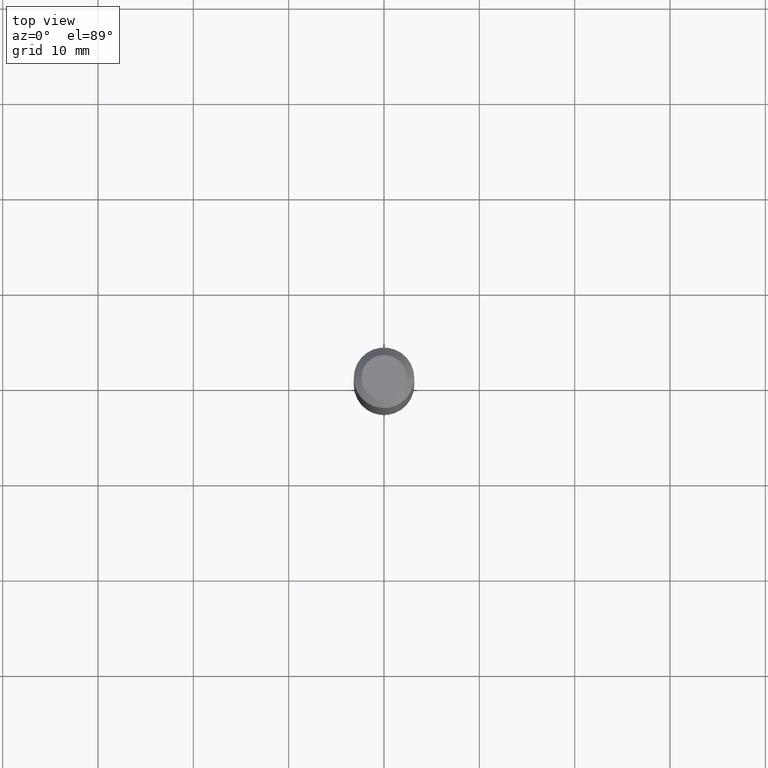
[diagram: clean part render]
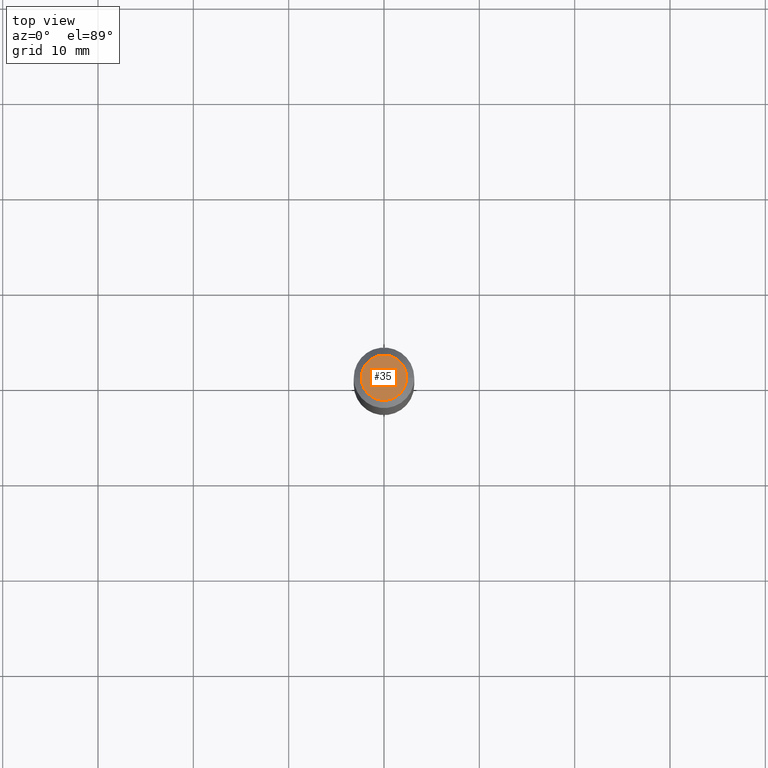
[diagram: same view with one face highlighted and labeled with its STEP entity id]
A machine part, top view. The second image highlights one B-rep face of the part: STEP entity #35.
In plain terms, the highlighted planar face has unit normal (0, -0, -1).
Its self-contained STEP definition (entity closure, byte-faithful):
#17 = AXIS2_PLACEMENT_3D ( 'NONE', #216, #89, #162 ) ;
#23 = PLANE ( 'NONE',  #17 ) ;
#35 = ADVANCED_FACE ( 'NONE', ( #321 ), #23, .F. ) ;
#60 = DIRECTION ( 'NONE',  ( -2.445468806185136597E-29, 3.491481338843145583E-15, 1.000000000000000000 ) ) ;
#65 = VERTEX_POINT ( 'NONE', #167 ) ;
#77 = AXIS2_PLACEMENT_3D ( 'NONE', #448, #160, #239 ) ;
#89 = DIRECTION ( 'NONE',  ( 2.438088387897960049E-29, -3.491481338843145188E-15, -1.000000000000000000 ) ) ;
#105 = CARTESIAN_POINT ( 'NONE',  ( -0.09375000000000009714, 7.092071469525098851E-16, -2.985923209265061018E-16 ) ) ;
#119 = AXIS2_PLACEMENT_3D ( 'NONE', #173, #60, #454 ) ;
#160 = DIRECTION ( 'NONE',  ( -2.445468806185136597E-29, 3.491481338843145583E-15, 1.000000000000000000 ) ) ;
#162 = DIRECTION ( 'NONE',  ( -1.000000000000000000, 6.982962677686265922E-15, -4.876176775795935793E-29 ) ) ;
#164 = EDGE_CURVE ( 'NONE', #233, #65, #195, .T. ) ;
#167 = CARTESIAN_POINT ( 'NONE',  ( 0.09375000000000009714, -8.049213644256852233E-16, -2.985923209264961917E-16 ) ) ;
#173 = CARTESIAN_POINT ( 'NONE',  ( 7.301982065921803301E-45, -1.042529516436742983E-30, -2.985923209265013193E-16 ) ) ;
#195 = CIRCLE ( 'NONE', #77, 0.09375000000000009714 ) ;
#216 = CARTESIAN_POINT ( 'NONE',  ( 3.650991032960901650E-45, -5.212647582183714915E-31, -1.492961604632506596E-16 ) ) ;
#233 = VERTEX_POINT ( 'NONE', #105 ) ;
#239 = DIRECTION ( 'NONE',  ( 1.000000000000000000, -6.982962677686265922E-15, 4.852736867747361162E-29 ) ) ;
#321 = FACE_OUTER_BOUND ( 'NONE', #427, .T. ) ;
#360 = CIRCLE ( 'NONE', #119, 0.09375000000000009714 ) ;
#381 = EDGE_CURVE ( 'NONE', #65, #233, #360, .T. ) ;
#385 = ORIENTED_EDGE ( 'NONE', *, *, #381, .T. ) ;
#427 = EDGE_LOOP ( 'NONE', ( #430, #385 ) ) ;
#430 = ORIENTED_EDGE ( 'NONE', *, *, #164, .T. ) ;
#448 = CARTESIAN_POINT ( 'NONE',  ( 7.301982065921803301E-45, -1.042529516436742983E-30, -2.985923209265013193E-16 ) ) ;
#454 = DIRECTION ( 'NONE',  ( 1.000000000000000000, -6.982962677686265922E-15, 4.852736867747361162E-29 ) ) ;